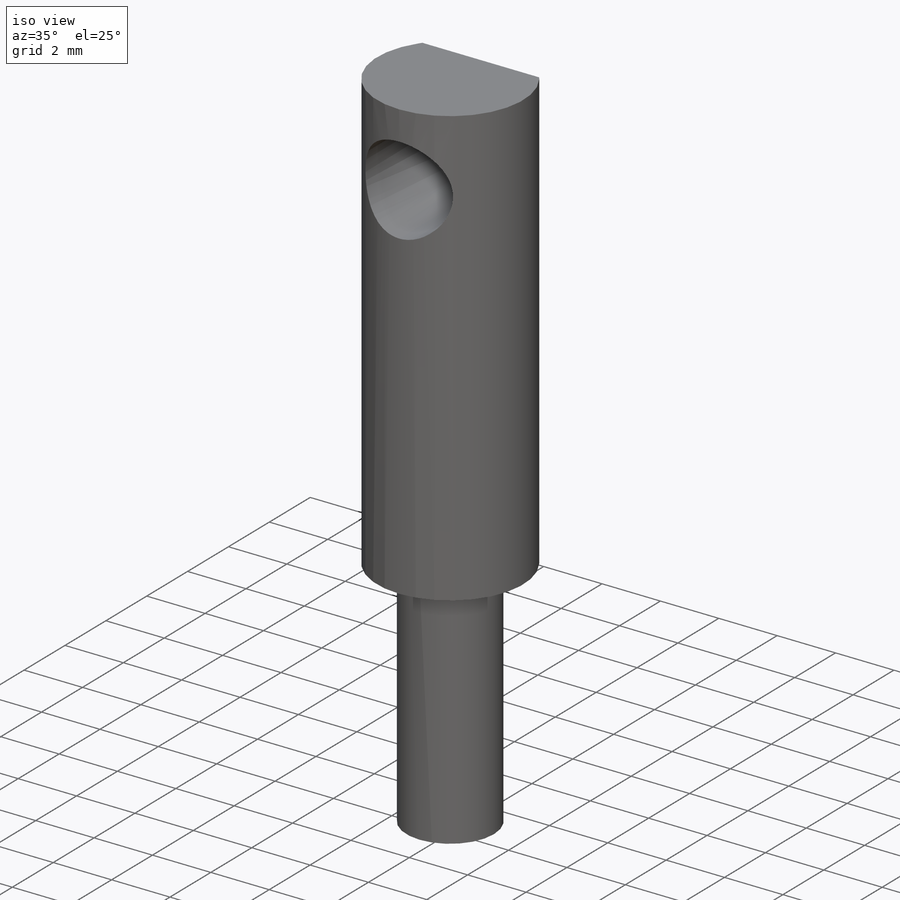
[diagram: iso view]
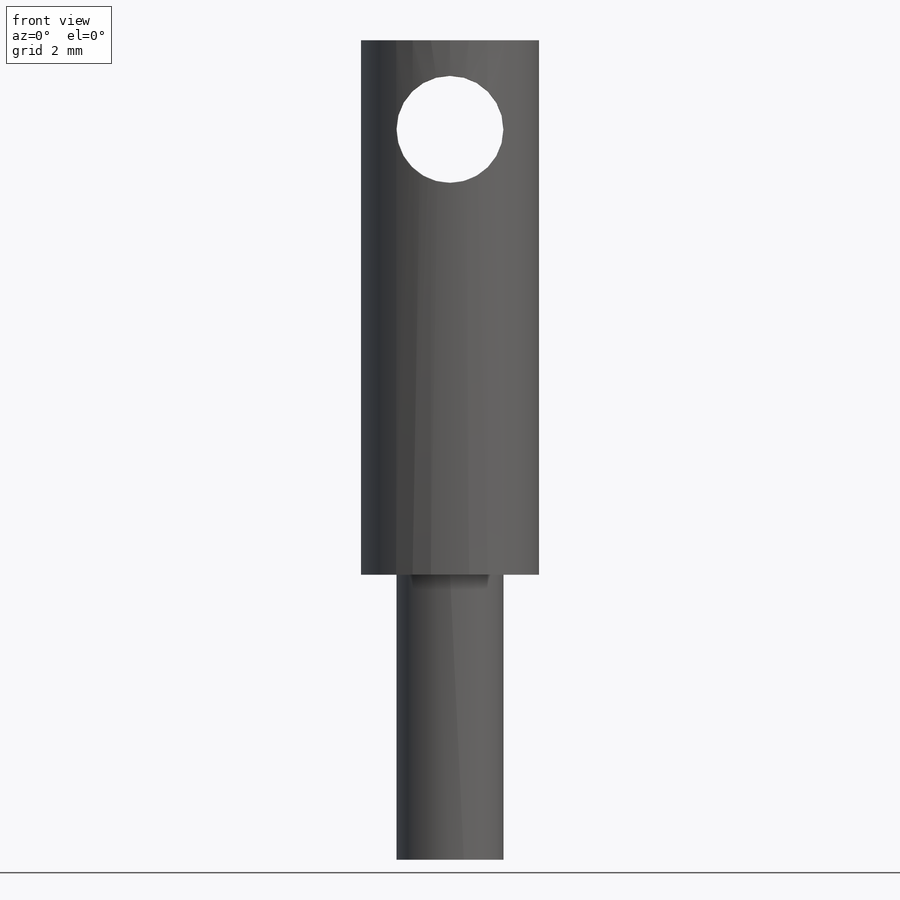
[diagram: front view]
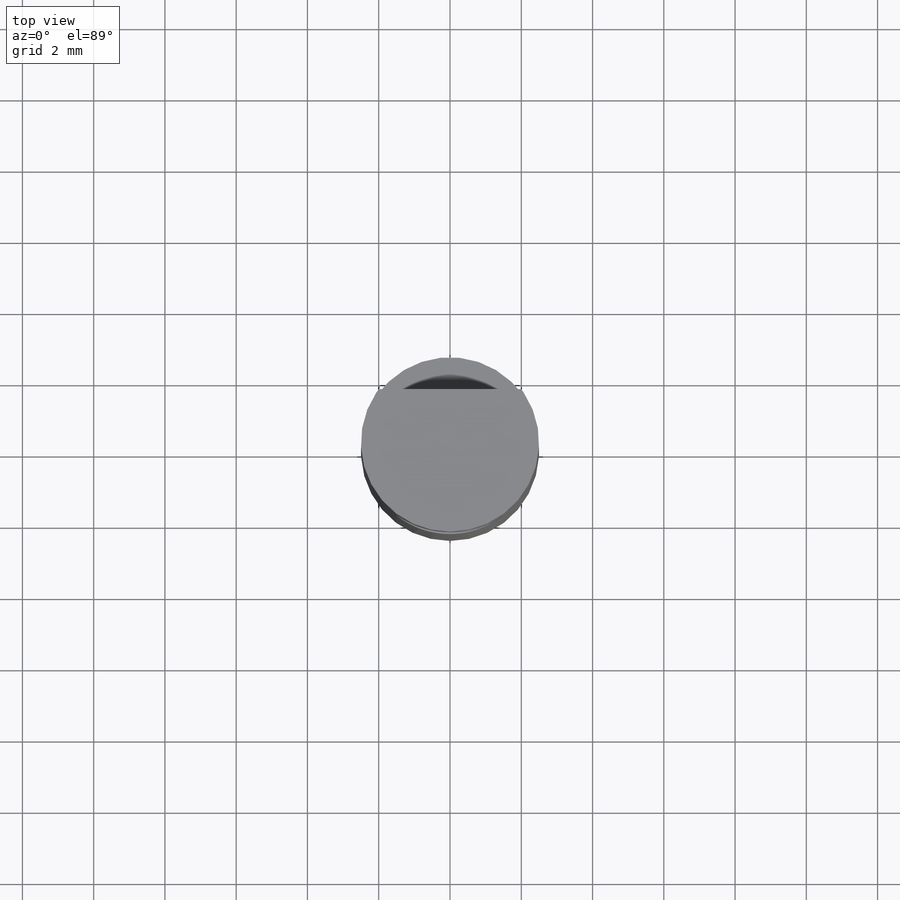
[diagram: top view]
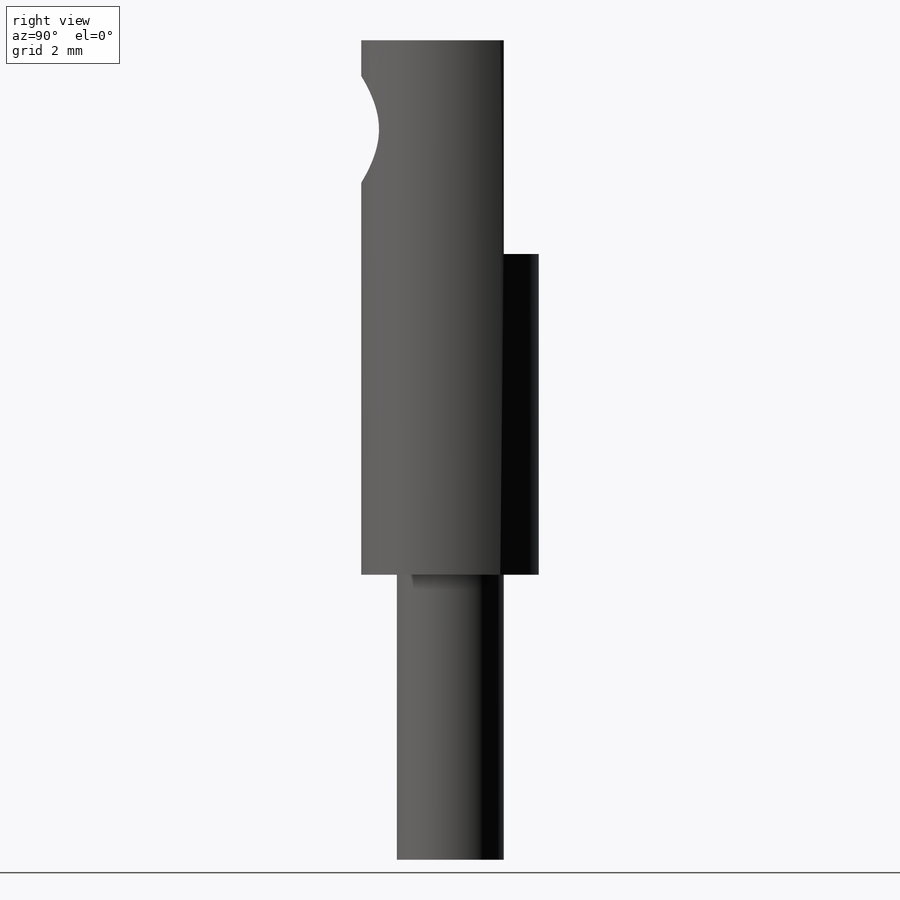
[diagram: right view]
SOLIDWORKS PART (.sldprt)
format: sldprt  version: not decoded by parser v0  size: 204,288 bytes
history: native  units: mm
features: plane x3, sketch x3, cut_extrude x2, material x1, revolve x1, thread x1 (+9 scaffold rows collapsed)
feature tree (20):
  scaffold x9  (default folders/planes/origin — collapsed)
  material  "非常高密度 PE (SS)"
  plane  "前视基准面"
  plane  "上视基准面"
  plane  "右视基准面"
  sketch  "草图1"  dims[D1=2.5mm D2=15.0mm D3=1.5mm D4=8.0mm]
  revolve  "旋转1"  [1 undecoded]
  thread  "装饰螺纹线1"  Diameter=2mm  [1 undecoded]
  sketch  "草图2"  dims[D2=5.0mm D1=1.5mm]
  cut_extrude  "切除-拉伸1"  Depth=6mm
  sketch  "草图3"  dims[D1=3.0mm D2=2.5mm D3=~0.034516mm]
  cut_extrude  "切除-拉伸2"  [1 undecoded]
decode coverage: 5 of 7 modeling features carry decoded parameters
note: ~ marks probable driven/reference dimensions
note: 3 parameter values undecoded
note: suppression state not decoded; provenance and decode notes live in map.json
